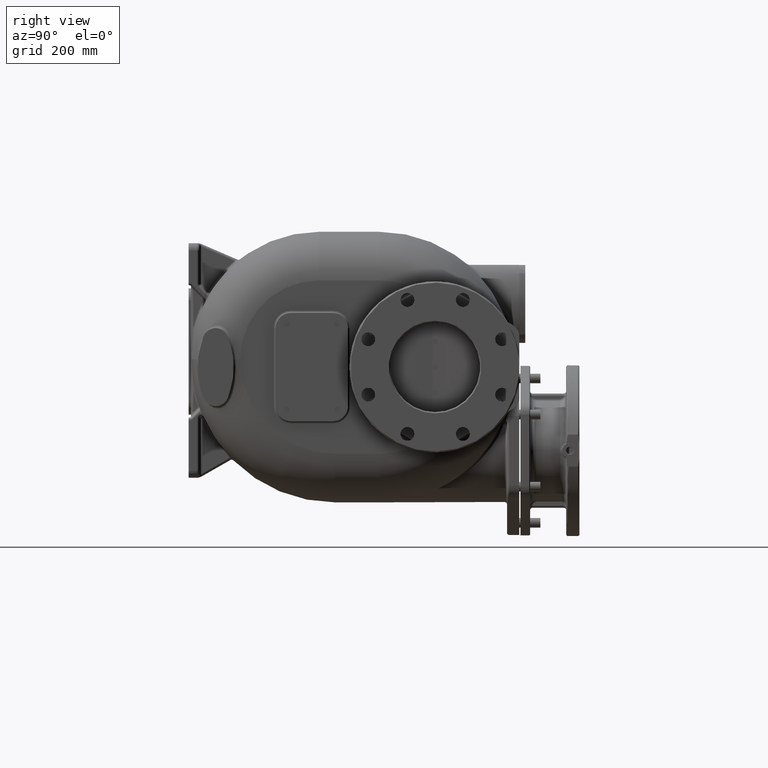
[diagram: clean part render]
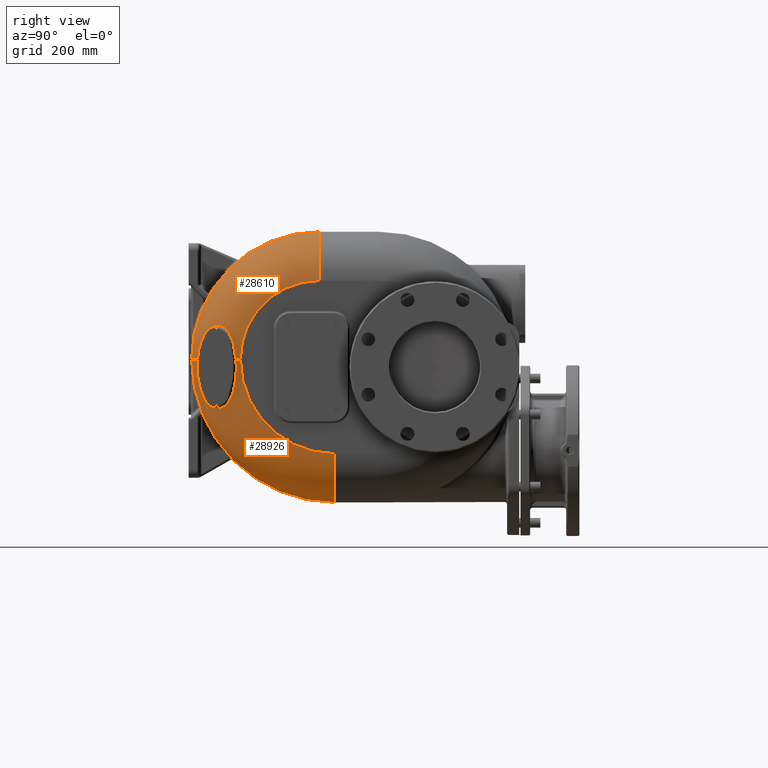
[diagram: same view with one multi-face feature highlighted, each face labeled with its STEP entity id]
A machine part, right view. The highlighted faces form ONE feature: a constant-radius fillet chain: 2 tangent blend faces with common blend radius 81 mm. The faces share edges in the B-rep.
Their STEP definitions:
[1] entity #28610 (Torus):
#2452=CARTESIAN_POINT('',(1.75E2,2.17E2,-1.3E1));
#2453=DIRECTION('',(1.E0,0.E0,0.E0));
#2454=DIRECTION('',(0.E0,0.E0,1.E0));
#2455=AXIS2_PLACEMENT_3D('',#2452,#2453,#2454);
#3329=CARTESIAN_POINT('',(1.746829829849E2,7.884065249736E1,-1.299999999999E1));
#3330=CARTESIAN_POINT('',(1.746792044707E2,7.879806956061E1,-1.244553714829E1));
#3331=CARTESIAN_POINT('',(1.746705265707E2,7.870769678981E1,-1.134183423742E1));
#3332=CARTESIAN_POINT('',(1.746539980732E2,7.855644554239E1,-9.699757664950E0));
#3333=CARTESIAN_POINT('',(1.746338156008E2,7.838987062858E1,-8.073686977598E0));
#3334=CARTESIAN_POINT('',(1.746098034248E2,7.820826024393E1,-6.464871554986E0));
#3335=CARTESIAN_POINT('',(1.745817665249E2,7.801193222903E1,-4.874892532193E0));
#3336=CARTESIAN_POINT('',(1.745495026881E2,7.780129409235E1,-3.305221677656E0));
#3337=CARTESIAN_POINT('',(1.745127966902E2,7.757672612600E1,-1.757354840660E0));
#3338=CARTESIAN_POINT('',(1.744714366868E2,7.733868265683E1,
-2.327840045208E-1));
#3339=CARTESIAN_POINT('',(1.744252171906E2,7.708766265939E1,1.267102820674E0));
#3340=CARTESIAN_POINT('',(1.743739243866E2,7.682407887206E1,2.741278317563E0));
#3341=CARTESIAN_POINT('',(1.743173675814E2,7.654845477321E1,4.188675821983E0));
#3342=CARTESIAN_POINT('',(1.742553626895E2,7.626126693898E1,5.608395762124E0));
#3343=CARTESIAN_POINT('',(1.741877398661E2,7.596298881410E1,6.999655913846E0));
#3344=CARTESIAN_POINT('',(1.741143627067E2,7.565418207784E1,8.361678124405E0));
#3345=CARTESIAN_POINT('',(1.740350946851E2,7.533528675545E1,9.693975672295E0));
#3346=CARTESIAN_POINT('',(1.739498308758E2,7.500680699593E1,1.099609739216E1));
#3347=CARTESIAN_POINT('',(1.738584917382E2,7.466925276322E1,1.226767437093E1));
#3348=CARTESIAN_POINT('',(1.737610035583E2,7.432304365442E1,1.350851520461E1));
#3349=CARTESIAN_POINT('',(1.736573333258E2,7.396868929554E1,1.471843317636E1));
#3350=CARTESIAN_POINT('',(1.735474568272E2,7.360662232571E1,1.589738334766E1));
#3351=CARTESIAN_POINT('',(1.734313621872E2,7.323723652061E1,1.704543289633E1));
#3352=CARTESIAN_POINT('',(1.733090748611E2,7.286099452472E1,1.816265632786E1));
#3353=CARTESIAN_POINT('',(1.731805843151E2,7.247815799064E1,1.924953530315E1));
#3354=CARTESIAN_POINT('',(1.730458859410E2,7.208897382508E1,2.030663207400E1));
#3355=CARTESIAN_POINT('',(1.729049902444E2,7.169370194106E1,2.133450229444E1));
#3356=CARTESIAN_POINT('',(1.727579287663E2,7.129260673208E1,2.233355721686E1));
#3357=CARTESIAN_POINT('',(1.726047416117E2,7.088595527585E1,2.330429596845E1));
#3358=CARTESIAN_POINT('',(1.724454891947E2,7.047402624871E1,2.424712006149E1));
#3359=CARTESIAN_POINT('',(1.722802523382E2,7.005709820622E1,2.516231376310E1));
#3360=CARTESIAN_POINT('',(1.721091271209E2,6.963547384452E1,2.605023196009E1));
#3361=CARTESIAN_POINT('',(1.719321956842E2,6.920937749631E1,2.691130291511E1));
#3362=CARTESIAN_POINT('',(1.717495296289E2,6.877898041427E1,2.774600626023E1));
#3363=CARTESIAN_POINT('',(1.715612059047E2,6.834446434950E1,2.855485980441E1));
#3364=CARTESIAN_POINT('',(1.713672999634E2,6.790597423986E1,2.933832526555E1));
#3365=CARTESIAN_POINT('',(1.711678809135E2,6.746363050161E1,3.009689199644E1));
#3366=CARTESIAN_POINT('',(1.709630157399E2,6.701754925964E1,3.083107712075E1));
#3367=CARTESIAN_POINT('',(1.707527595090E2,6.656779713466E1,3.154136302940E1));
#3368=CARTESIAN_POINT('',(1.705371531770E2,6.611441280380E1,3.222826967108E1));
#3369=CARTESIAN_POINT('',(1.703162347739E2,6.565743196281E1,3.289230513240E1));
#3370=CARTESIAN_POINT('',(1.700900311895E2,6.519685430015E1,3.353393277120E1));
#3371=CARTESIAN_POINT('',(1.698585497718E2,6.473264772798E1,3.415364822003E1));
#3372=CARTESIAN_POINT('',(1.696217907795E2,6.426477189168E1,3.475192461521E1));
#3373=CARTESIAN_POINT('',(1.693797316946E2,6.379313686223E1,3.532921277068E1));
#3374=CARTESIAN_POINT('',(1.691323275721E2,6.331762193331E1,3.588597510124E1));
#3375=CARTESIAN_POINT('',(1.688795595075E2,6.283816511085E1,3.642256581178E1));
#3376=CARTESIAN_POINT('',(1.686213922855E2,6.235467015010E1,3.693930659569E1));
#3377=CARTESIAN_POINT('',(1.683577407041E2,6.186696124701E1,3.743658527980E1));
#3378=CARTESIAN_POINT('',(1.680884414929E2,6.137473120906E1,3.791487104957E1));
#3379=CARTESIAN_POINT('',(1.678132017963E2,6.087744850791E1,3.837471269326E1));
#3380=CARTESIAN_POINT('',(1.675321945618E2,6.037544641962E1,3.881583869027E1));
#3381=CARTESIAN_POINT('',(1.672459947355E2,5.986974695742E1,3.923747269391E1));
#3382=CARTESIAN_POINT('',(1.669551479588E2,5.936126740473E1,3.963905052886E1));
#3383=CARTESIAN_POINT('',(1.666601170991E2,5.885076549029E1,4.002032380338E1));
#3384=CARTESIAN_POINT('',(1.663614002514E2,5.833902292176E1,4.038108776787E1));
#3385=CARTESIAN_POINT('',(1.660593720981E2,5.782658040855E1,4.072139032272E1));
#3386=CARTESIAN_POINT('',(1.657537844266E2,5.731294017186E1,4.104202588443E1));
#3387=CARTESIAN_POINT('',(1.654443759204E2,5.679758926457E1,4.134360714781E1));
#3388=CARTESIAN_POINT('',(1.651309861998E2,5.628021011734E1,4.162656769299E1));
#3389=CARTESIAN_POINT('',(1.648136102591E2,5.576076291256E1,4.189117326028E1));
#3390=CARTESIAN_POINT('',(1.644921850345E2,5.523909566732E1,4.213763819879E1));
#3391=CARTESIAN_POINT('',(1.641666337636E2,5.471506110908E1,4.236619668327E1));
#3392=CARTESIAN_POINT('',(1.638368572977E2,5.418848140098E1,4.257704636E1));
#3393=CARTESIAN_POINT('',(1.635027412343E2,5.365914533418E1,4.277029309083E1));
#3394=CARTESIAN_POINT('',(1.631642434889E2,5.312698789890E1,4.294603204900E1));
#3395=CARTESIAN_POINT('',(1.628213191196E2,5.259192735310E1,4.310428463705E1));
#3396=CARTESIAN_POINT('',(1.624739071713E2,5.205385610728E1,4.324503448823E1));
#3397=CARTESIAN_POINT('',(1.621219140664E2,5.151264027936E1,4.336830161882E1));
#3398=CARTESIAN_POINT('',(1.617652269064E2,5.096809939680E1,4.347400464703E1));
#3399=CARTESIAN_POINT('',(1.614038455106E2,5.042023901915E1,4.356202294576E1));
#3400=CARTESIAN_POINT('',(1.610378902978E2,4.986925258604E1,4.363221984911E1));
#3401=CARTESIAN_POINT('',(1.606674775312E2,4.931530104518E1,4.368440275502E1));
#3402=CARTESIAN_POINT('',(1.602927234528E2,4.875855899149E1,4.371843370374E1));
#3403=CARTESIAN_POINT('',(1.600401176294E2,4.838571796670E1,4.372891983878E1));
#3404=CARTESIAN_POINT('',(1.599131193948E2,4.819886811485E1,4.373108258469E1));
#3406=CARTESIAN_POINT('',(1.599131193948E2,4.819886811485E1,4.373108258469E1));
#3407=CARTESIAN_POINT('',(1.597837170996E2,4.800848269575E1,4.373328602502E1));
#3408=CARTESIAN_POINT('',(1.595233511070E2,4.762668044502E1,4.373140112179E1));
#3409=CARTESIAN_POINT('',(1.591281122762E2,4.705088534469E1,4.370945965032E1));
#3410=CARTESIAN_POINT('',(1.587283050793E2,4.647215729344E1,4.366812490201E1));
#3411=CARTESIAN_POINT('',(1.583240321315E2,4.589062862121E1,4.360711615494E1));
#3412=CARTESIAN_POINT('',(1.579153964054E2,4.530643492682E1,4.352616600458E1));
#3413=CARTESIAN_POINT('',(1.575025377004E2,4.471974257819E1,4.342495290027E1));
#3414=CARTESIAN_POINT('',(1.570855739380E2,4.413069496100E1,4.330318254168E1));
#3415=CARTESIAN_POINT('',(1.566646272013E2,4.353943355180E1,4.316053802502E1));
#3416=CARTESIAN_POINT('',(1.562398542652E2,4.294613493709E1,4.299667706911E1));
#3417=CARTESIAN_POINT('',(1.558113531328E2,4.235090321656E1,4.281126534453E1));
#3418=CARTESIAN_POINT('',(1.553792576938E2,4.175387644003E1,4.260392506802E1));
#3419=CARTESIAN_POINT('',(1.549437076773E2,4.115519811587E1,4.237427091184E1));
#3420=CARTESIAN_POINT('',(1.545048065442E2,4.055496744026E1,4.212190553704E1));
#3421=CARTESIAN_POINT('',(1.540627151575E2,3.995334601246E1,4.184640122315E1));
#3422=CARTESIAN_POINT('',(1.536175478291E2,3.935043810977E1,4.154731188310E1));
#3423=CARTESIAN_POINT('',(1.531694067797E2,3.874633078482E1,4.122415583112E1));
#3424=CARTESIAN_POINT('',(1.527184475588E2,3.814117160195E1,4.087643167830E1));
#3425=CARTESIAN_POINT('',(1.522647486492E2,3.753501604646E1,4.050359138797E1));
#3426=CARTESIAN_POINT('',(1.518084283301E2,3.692796824646E1,4.010506481121E1));
#3427=CARTESIAN_POINT('',(1.513496166203E2,3.632014404002E1,3.968024760013E1));
#3428=CARTESIAN_POINT('',(1.508883710899E2,3.571157536535E1,3.922846373576E1));
#3429=CARTESIAN_POINT('',(1.504248220674E2,3.510238646464E1,3.874904123229E1));
#3430=CARTESIAN_POINT('',(1.499590580078E2,3.449264892677E1,3.824122417929E1));
#3431=CARTESIAN_POINT('',(1.494911412633E2,3.388241297546E1,3.770420256213E1));
#3432=CARTESIAN_POINT('',(1.490212042292E2,3.327182042241E1,3.713717785446E1));
#3433=CARTESIAN_POINT('',(1.485493036616E2,3.266092060651E1,3.653920718424E1));
#3434=CARTESIAN_POINT('',(1.480755276740E2,3.204982130692E1,3.590935610721E1));
#3435=CARTESIAN_POINT('',(1.475999965984E2,3.143867407269E1,3.524665138775E1));
#3436=CARTESIAN_POINT('',(1.471227668542E2,3.082755889257E1,3.454996339584E1));
#3437=CARTESIAN_POINT('',(1.466439576921E2,3.021666364747E1,3.381823702834E1));
#3438=CARTESIAN_POINT('',(1.461636763300E2,2.960615943068E1,3.305027296729E1));
#3439=CARTESIAN_POINT('',(1.456820125657E2,2.899621995452E1,3.224479554426E1));
#3440=CARTESIAN_POINT('',(1.451991091460E2,2.838712020579E1,3.140060471589E1));
#3441=CARTESIAN_POINT('',(1.447150876028E2,2.777910091009E1,3.051626813873E1));
#3442=CARTESIAN_POINT('',(1.442300895049E2,2.717248276108E1,2.959043347079E1));
#3443=CARTESIAN_POINT('',(1.437442737535E2,2.656762996023E1,2.862168332938E1));
#3444=CARTESIAN_POINT('',(1.432577827151E2,2.596489670781E1,2.760838843727E1));
#3445=CARTESIAN_POINT('',(1.427707661609E2,2.536472925261E1,2.654906152911E1));
#3446=CARTESIAN_POINT('',(1.422834806852E2,2.476769595105E1,2.544214528891E1));
#3447=CARTESIAN_POINT('',(1.417961899347E2,2.417443813252E1,2.428614927735E1));
#3448=CARTESIAN_POINT('',(1.413091517248E2,2.358566726630E1,2.307968137192E1));
#3449=CARTESIAN_POINT('',(1.408227468673E2,2.300221520214E1,2.182120993267E1));
#3450=CARTESIAN_POINT('',(1.403372889723E2,2.242495840037E1,2.050940147683E1));
#3451=CARTESIAN_POINT('',(1.398531196365E2,2.185483320171E1,1.914280870690E1));
#3452=CARTESIAN_POINT('',(1.393706024780E2,2.129284079069E1,1.771988730485E1));
#3453=CARTESIAN_POINT('',(1.388900179869E2,2.074002559565E1,1.623927532923E1));
#3454=CARTESIAN_POINT('',(1.384118644196E2,2.019766687025E1,1.469973804761E1));
#3455=CARTESIAN_POINT('',(1.379365480712E2,1.966706271912E1,1.310016541215E1));
#3456=CARTESIAN_POINT('',(1.374645003529E2,1.914962668174E1,1.143969446494E1));
#3457=CARTESIAN_POINT('',(1.369963978263E2,1.864703194106E1,9.717864821511E0));
#3458=CARTESIAN_POINT('',(1.365326787705E2,1.816085147903E1,7.934295919351E0));
#3459=CARTESIAN_POINT('',(1.360740179738E2,1.769289986537E1,6.089090868848E0));
#3460=CARTESIAN_POINT('',(1.356211153244E2,1.724505220818E1,4.182658384068E0));
#3461=CARTESIAN_POINT('',(1.351744779454E2,1.681910009717E1,2.215559436378E0));
#3462=CARTESIAN_POINT('',(1.347352575325E2,1.641735592529E1,1.903477044404E-1));
#3463=CARTESIAN_POINT('',(1.343043200259E2,1.604187561523E1,-1.890348004364E0));
#3464=CARTESIAN_POINT('',(1.338825773627E2,1.569468663020E1,-4.023311504254E0));
#3465=CARTESIAN_POINT('',(1.334712230803E2,1.537788619058E1,-6.204466846682E0));
#3466=CARTESIAN_POINT('',(1.330711012472E2,1.509321195766E1,-8.429555363647E0));
#3467=CARTESIAN_POINT('',(1.326831531908E2,1.484229823454E1,-1.069473223705E1));
#3468=CARTESIAN_POINT('',(1.324334637403E2,1.469860986193E1,-1.222763649690E1));
#3469=CARTESIAN_POINT('',(1.323108332678E2,1.463278025361E1,-1.3E1));
#3471=CARTESIAN_POINT('',(9.4E1,2.17E2,1.18E2));
#3472=DIRECTION('',(0.E0,-1.E0,0.E0));
#3473=DIRECTION('',(1.E0,0.E0,0.E0));
#3474=AXIS2_PLACEMENT_3D('',#3471,#3472,#3473);
#3486=CARTESIAN_POINT('',(1.323108332678E2,1.463278025361E1,-1.3E1));
#3654=CARTESIAN_POINT('',(1.746829829849E2,7.884065249736E1,-1.299999999999E1));
#3656=CARTESIAN_POINT('',(9.4E1,8.6E1,-1.3E1));
#3657=DIRECTION('',(0.E0,0.E0,-1.E0));
#3658=DIRECTION('',(1.E0,0.E0,0.E0));
#3659=AXIS2_PLACEMENT_3D('',#3656,#3657,#3658);
#3661=CARTESIAN_POINT('',(9.4E1,8.6E1,-1.3E1));
#3662=DIRECTION('',(0.E0,0.E0,-1.E0));
#3663=DIRECTION('',(4.729732502194E-1,-8.810767869925E-1,0.E0));
#3664=AXIS2_PLACEMENT_3D('',#3661,#3662,#3663);
#6973=CARTESIAN_POINT('',(9.4E1,2.17E2,-1.3E1));
#6974=DIRECTION('',(1.E0,0.E0,0.E0));
#6975=DIRECTION('',(0.E0,0.E0,1.E0));
#6976=AXIS2_PLACEMENT_3D('',#6973,#6974,#6975);
#21676=CARTESIAN_POINT('',(9.4E1,2.170000000004E2,1.99E2));
#21678=VERTEX_POINT('',#21676);
#21733=CARTESIAN_POINT('',(1.75E2,8.6E1,-1.3E1));
#21734=VERTEX_POINT('',#21733);
#21735=CARTESIAN_POINT('',(9.4E1,5.E0,-1.3E1));
#21736=VERTEX_POINT('',#21735);
#21737=CARTESIAN_POINT('',(1.75E2,2.17E2,1.18E2));
#21738=VERTEX_POINT('',#21737);
#21741=VERTEX_POINT('',#3486);
#21744=VERTEX_POINT('',#3654);
#21746=VERTEX_POINT('',#3404);
#28591=CARTESIAN_POINT('',(9.4E1,2.17E2,-1.3E1));
#28592=DIRECTION('',(-1.E0,0.E0,0.E0));
#28593=DIRECTION('',(0.E0,7.943428798761E-3,9.999684504718E-1));
#28594=AXIS2_PLACEMENT_3D('',#28591,#28592,#28593);
#28595=TOROIDAL_SURFACE('',#28594,1.31E2,8.1E1);
#28597=ORIENTED_EDGE('',*,*,#28596,.T.);
#28599=ORIENTED_EDGE('',*,*,#28598,.T.);
#28601=ORIENTED_EDGE('',*,*,#28600,.T.);
#28603=ORIENTED_EDGE('',*,*,#28602,.F.);
#28604=ORIENTED_EDGE('',*,*,#28583,.F.);
#28605=ORIENTED_EDGE('',*,*,#27791,.T.);
#28607=ORIENTED_EDGE('',*,*,#28606,.T.);
#28608=EDGE_LOOP('',(#28597,#28599,#28601,#28603,#28604,#28605,#28607));
#28609=FACE_OUTER_BOUND('',#28608,.F.);
#28610=ADVANCED_FACE('',(#28609),#28595,.T.);
#2456=CIRCLE('',#2455,1.31E2);
#3405=B_SPLINE_CURVE_WITH_KNOTS('',3,(#3329,#3330,#3331,#3332,#3333,#3334,#3335,
#3336,#3337,#3338,#3339,#3340,#3341,#3342,#3343,#3344,#3345,#3346,#3347,#3348,
#3349,#3350,#3351,#3352,#3353,#3354,#3355,#3356,#3357,#3358,#3359,#3360,#3361,
#3362,#3363,#3364,#3365,#3366,#3367,#3368,#3369,#3370,#3371,#3372,#3373,#3374,
#3375,#3376,#3377,#3378,#3379,#3380,#3381,#3382,#3383,#3384,#3385,#3386,#3387,
#3388,#3389,#3390,#3391,#3392,#3393,#3394,#3395,#3396,#3397,#3398,#3399,#3400,
#3401,#3402,#3403,#3404),.UNSPECIFIED.,.F.,.F.,(4,1,1,1,1,1,1,1,1,1,1,1,1,1,1,1,
1,1,1,1,1,1,1,1,1,1,1,1,1,1,1,1,1,1,1,1,1,1,1,1,1,1,1,1,1,1,1,1,1,1,1,1,1,1,1,1,
1,1,1,1,1,1,1,1,1,1,1,1,1,1,1,1,1,4),(0.E0,1.369863013699E-2,2.739726027397E-2,
4.109589041096E-2,5.479452054795E-2,6.849315068493E-2,8.219178082192E-2,
9.589041095890E-2,1.095890410959E-1,1.232876712329E-1,1.369863013699E-1,
1.506849315068E-1,1.643835616438E-1,1.780821917808E-1,1.917808219178E-1,
2.054794520548E-1,2.191780821918E-1,2.328767123288E-1,2.465753424658E-1,
2.602739726027E-1,2.739726027397E-1,2.876712328767E-1,3.013698630137E-1,
3.150684931507E-1,3.287671232877E-1,3.424657534247E-1,3.561643835616E-1,
3.698630136986E-1,3.835616438356E-1,3.972602739726E-1,4.109589041096E-1,
4.246575342466E-1,4.383561643836E-1,4.520547945205E-1,4.657534246575E-1,
4.794520547945E-1,4.931506849315E-1,5.068493150685E-1,5.205479452055E-1,
5.342465753425E-1,5.479452054795E-1,5.616438356164E-1,5.753424657534E-1,
5.890410958904E-1,6.027397260274E-1,6.164383561644E-1,6.301369863014E-1,
6.438356164384E-1,6.575342465753E-1,6.712328767123E-1,6.849315068493E-1,
6.986301369863E-1,7.123287671233E-1,7.260273972603E-1,7.397260273973E-1,
7.534246575342E-1,7.671232876712E-1,7.808219178082E-1,7.945205479452E-1,
8.082191780822E-1,8.219178082192E-1,8.356164383562E-1,8.493150684932E-1,
8.630136986301E-1,8.767123287671E-1,8.904109589041E-1,9.041095890411E-1,
9.178082191781E-1,9.315068493151E-1,9.452054794521E-1,9.589041095890E-1,
9.726027397260E-1,9.863013698630E-1,1.E0),.UNSPECIFIED.);
#3470=B_SPLINE_CURVE_WITH_KNOTS('',3,(#3406,#3407,#3408,#3409,#3410,#3411,#3412,
#3413,#3414,#3415,#3416,#3417,#3418,#3419,#3420,#3421,#3422,#3423,#3424,#3425,
#3426,#3427,#3428,#3429,#3430,#3431,#3432,#3433,#3434,#3435,#3436,#3437,#3438,
#3439,#3440,#3441,#3442,#3443,#3444,#3445,#3446,#3447,#3448,#3449,#3450,#3451,
#3452,#3453,#3454,#3455,#3456,#3457,#3458,#3459,#3460,#3461,#3462,#3463,#3464,
#3465,#3466,#3467,#3468,#3469),.UNSPECIFIED.,.F.,.F.,(4,1,1,1,1,1,1,1,1,1,1,1,1,
1,1,1,1,1,1,1,1,1,1,1,1,1,1,1,1,1,1,1,1,1,1,1,1,1,1,1,1,1,1,1,1,1,1,1,1,1,1,1,1,
1,1,1,1,1,1,1,1,4),(0.E0,1.639344262295E-2,3.278688524590E-2,4.918032786885E-2,
6.557377049180E-2,8.196721311475E-2,9.836065573770E-2,1.147540983607E-1,
1.311475409836E-1,1.475409836066E-1,1.639344262295E-1,1.803278688525E-1,
1.967213114754E-1,2.131147540984E-1,2.295081967213E-1,2.459016393443E-1,
2.622950819672E-1,2.786885245902E-1,2.950819672131E-1,3.114754098361E-1,
3.278688524590E-1,3.442622950820E-1,3.606557377049E-1,3.770491803279E-1,
3.934426229508E-1,4.098360655738E-1,4.262295081967E-1,4.426229508197E-1,
4.590163934426E-1,4.754098360656E-1,4.918032786885E-1,5.081967213115E-1,
5.245901639344E-1,5.409836065574E-1,5.573770491803E-1,5.737704918033E-1,
5.901639344262E-1,6.065573770492E-1,6.229508196721E-1,6.393442622951E-1,
6.557377049180E-1,6.721311475410E-1,6.885245901639E-1,7.049180327869E-1,
7.213114754098E-1,7.377049180328E-1,7.540983606557E-1,7.704918032787E-1,
7.868852459016E-1,8.032786885246E-1,8.196721311475E-1,8.360655737705E-1,
8.524590163934E-1,8.688524590164E-1,8.852459016393E-1,9.016393442623E-1,
9.180327868852E-1,9.344262295082E-1,9.508196721311E-1,9.672131147541E-1,
9.836065573770E-1,1.E0),.UNSPECIFIED.);
#3475=CIRCLE('',#3474,8.1E1);
#3660=CIRCLE('',#3659,8.1E1);
#3665=CIRCLE('',#3664,8.1E1);
#6977=CIRCLE('',#6976,2.12E2);
#27791=EDGE_CURVE('',#21738,#21734,#2456,.T.);
#28583=EDGE_CURVE('',#21738,#21678,#3475,.T.);
#28596=EDGE_CURVE('',#21744,#21746,#3405,.T.);
#28598=EDGE_CURVE('',#21746,#21741,#3470,.T.);
#28600=EDGE_CURVE('',#21741,#21736,#3665,.T.);
#28602=EDGE_CURVE('',#21678,#21736,#6977,.T.);
#28606=EDGE_CURVE('',#21734,#21744,#3660,.T.);
[2] entity #28926 (Torus):
#2447=CARTESIAN_POINT('',(1.75E2,2.43E2,-1.3E1));
#2448=DIRECTION('',(1.E0,0.E0,0.E0));
#2449=DIRECTION('',(0.E0,-1.E0,0.E0));
#2450=AXIS2_PLACEMENT_3D('',#2447,#2448,#2449);
#3486=CARTESIAN_POINT('',(1.323108332678E2,1.463278025361E1,-1.3E1));
#3487=CARTESIAN_POINT('',(1.321929159865E2,1.456947936981E1,-1.374555449030E1));
#3488=CARTESIAN_POINT('',(1.319638233510E2,1.445455072807E1,-1.524084312153E1));
#3489=CARTESIAN_POINT('',(1.316405377955E2,1.431721406541E1,-1.749793679789E1));
#3490=CARTESIAN_POINT('',(1.313388376110E2,1.421540285107E1,-1.976220701034E1));
#3491=CARTESIAN_POINT('',(1.310594774055E2,1.414914611051E1,-2.202897011508E1));
#3492=CARTESIAN_POINT('',(1.308034259133E2,1.411841430698E1,-2.429302126710E1));
#3493=CARTESIAN_POINT('',(1.305714059698E2,1.412288453073E1,-2.654936909042E1));
#3494=CARTESIAN_POINT('',(1.303641189346E2,1.416203132697E1,-2.879253267763E1));
#3495=CARTESIAN_POINT('',(1.301821588615E2,1.423507465947E1,-3.101674278618E1));
#3496=CARTESIAN_POINT('',(1.300258495110E2,1.434092456779E1,-3.321630553775E1));
#3497=CARTESIAN_POINT('',(1.298956415263E2,1.447841280720E1,-3.538582157033E1));
#3498=CARTESIAN_POINT('',(1.297916810723E2,1.464606482799E1,-3.751987319681E1));
#3499=CARTESIAN_POINT('',(1.297138265640E2,1.484216925607E1,-3.961354069893E1));
#3500=CARTESIAN_POINT('',(1.296619765889E2,1.506519338546E1,-4.166411083156E1));
#3501=CARTESIAN_POINT('',(1.296357107990E2,1.531336935544E1,-4.366854482837E1));
#3502=CARTESIAN_POINT('',(1.296345710273E2,1.558501175040E1,-4.562486243165E1));
#3503=CARTESIAN_POINT('',(1.296580666419E2,1.587854971024E1,-4.753196597303E1));
#3504=CARTESIAN_POINT('',(1.297054573793E2,1.619228994133E1,-4.938863645890E1));
#3505=CARTESIAN_POINT('',(1.297761310083E2,1.652480432405E1,-5.119476029080E1));
#3506=CARTESIAN_POINT('',(1.298693537382E2,1.687468746011E1,-5.295039370158E1));
#3507=CARTESIAN_POINT('',(1.299843304193E2,1.724059390064E1,-5.465581021174E1));
#3508=CARTESIAN_POINT('',(1.301203787487E2,1.762139047255E1,-5.631180013578E1));
#3509=CARTESIAN_POINT('',(1.302766966480E2,1.801595976922E1,-5.791919304816E1));
#3510=CARTESIAN_POINT('',(1.304525560798E2,1.842332008604E1,-5.947898473001E1));
#3511=CARTESIAN_POINT('',(1.306472512651E2,1.884259451904E1,-6.099229934181E1));
#3512=CARTESIAN_POINT('',(1.308600437599E2,1.927297211061E1,-6.246034021823E1));
#3513=CARTESIAN_POINT('',(1.310902707221E2,1.971372939236E1,-6.388424488894E1));
#3514=CARTESIAN_POINT('',(1.313372636215E2,2.016422670904E1,-6.526527235066E1));
#3515=CARTESIAN_POINT('',(1.316003771177E2,2.062387951190E1,-6.660461685288E1));
#3516=CARTESIAN_POINT('',(1.318789948743E2,2.109214708328E1,-6.790337406105E1));
#3517=CARTESIAN_POINT('',(1.321725244732E2,2.156858203436E1,-6.916276597328E1));
#3518=CARTESIAN_POINT('',(1.324803776733E2,2.205272903275E1,-7.038378803355E1));
#3519=CARTESIAN_POINT('',(1.328019992718E2,2.254420348146E1,-7.156748310063E1));
#3520=CARTESIAN_POINT('',(1.331368547447E2,2.304266699685E1,-7.271487294511E1));
#3521=CARTESIAN_POINT('',(1.334843961739E2,2.354775701753E1,-7.382678815048E1));
#3522=CARTESIAN_POINT('',(1.338441350259E2,2.405920807460E1,-7.490417352150E1));
#3523=CARTESIAN_POINT('',(1.342155565869E2,2.457672296699E1,-7.594780450483E1));
#3524=CARTESIAN_POINT('',(1.345981686769E2,2.510003405992E1,-7.695842569171E1));
#3525=CARTESIAN_POINT('',(1.349915192180E2,2.562893215547E1,-7.793681314708E1));
#3526=CARTESIAN_POINT('',(1.353951091935E2,2.616315119328E1,-7.888357244240E1));
#3527=CARTESIAN_POINT('',(1.358085079080E2,2.670250573226E1,-7.979937482440E1));
#3528=CARTESIAN_POINT('',(1.362312618623E2,2.724679058739E1,-8.068481012046E1));
#3529=CARTESIAN_POINT('',(1.366629148651E2,2.779579373420E1,-8.154040366904E1));
#3530=CARTESIAN_POINT('',(1.371030703166E2,2.834936953940E1,-8.236672217447E1));
#3531=CARTESIAN_POINT('',(1.375512711636E2,2.890731136185E1,-8.316422303742E1));
#3532=CARTESIAN_POINT('',(1.380071182059E2,2.946946616968E1,-8.393337852558E1));
#3533=CARTESIAN_POINT('',(1.384702104602E2,3.003568397904E1,-8.467463859723E1));
#3534=CARTESIAN_POINT('',(1.389401160171E2,3.060578050749E1,-8.538838898758E1));
#3535=CARTESIAN_POINT('',(1.394164729358E2,3.117963545908E1,-8.607503727699E1));
#3536=CARTESIAN_POINT('',(1.398988645163E2,3.175708003004E1,-8.673493992039E1));
#3537=CARTESIAN_POINT('',(1.403869006968E2,3.233796203254E1,-8.736843292871E1));
#3538=CARTESIAN_POINT('',(1.408802221836E2,3.292215751081E1,-8.797585213930E1));
#3539=CARTESIAN_POINT('',(1.413784109194E2,3.350948687114E1,-8.855748941958E1));
#3540=CARTESIAN_POINT('',(1.418811095929E2,3.409981679914E1,-8.911363189090E1));
#3541=CARTESIAN_POINT('',(1.423879383908E2,3.469299394010E1,-8.964455076792E1));
#3542=CARTESIAN_POINT('',(1.428984913039E2,3.528883420617E1,-9.015048998223E1));
#3543=CARTESIAN_POINT('',(1.434124191458E2,3.588719641385E1,-9.063168742857E1));
#3544=CARTESIAN_POINT('',(1.439293170632E2,3.648788712883E1,-9.108836342053E1));
#3545=CARTESIAN_POINT('',(1.444487901576E2,3.709071163010E1,-9.152072324662E1));
#3546=CARTESIAN_POINT('',(1.449704750155E2,3.769549554336E1,-9.192896344836E1));
#3547=CARTESIAN_POINT('',(1.454939456896E2,3.830200168700E1,-9.231326869725E1));
#3548=CARTESIAN_POINT('',(1.460188110616E2,3.891001313679E1,-9.267381641223E1));
#3549=CARTESIAN_POINT('',(1.465446803131E2,3.951930424899E1,-9.301077692639E1));
#3550=CARTESIAN_POINT('',(1.470711247058E2,4.012960732484E1,-9.332432350819E1));
#3551=CARTESIAN_POINT('',(1.475977579939E2,4.074068180711E1,-9.361462412449E1));
#3552=CARTESIAN_POINT('',(1.481241656165E2,4.135224879858E1,-9.388184153948E1));
#3553=CARTESIAN_POINT('',(1.486499190286E2,4.196400698444E1,-9.412614830144E1));
#3554=CARTESIAN_POINT('',(1.491746235057E2,4.257567251161E1,-9.434771132124E1));
#3555=CARTESIAN_POINT('',(1.496978756090E2,4.318694818094E1,-9.454671811071E1));
#3556=CARTESIAN_POINT('',(1.502192922606E2,4.379754763319E1,-9.472336679492E1));
#3557=CARTESIAN_POINT('',(1.507385054394E2,4.440718144728E1,-9.487784233726E1));
#3558=CARTESIAN_POINT('',(1.512550967418E2,4.501549855094E1,-9.501034644267E1));
#3559=CARTESIAN_POINT('',(1.517686710283E2,4.562215571993E1,-9.512108529684E1));
#3560=CARTESIAN_POINT('',(1.522788843594E2,4.622685477822E1,-9.521028024643E1));
#3561=CARTESIAN_POINT('',(1.527854503185E2,4.682936281408E1,-9.527818802354E1));
#3562=CARTESIAN_POINT('',(1.532881003993E2,4.742944416094E1,-9.532503650922E1));
#3563=CARTESIAN_POINT('',(1.537865824981E2,4.802687725904E1,-9.535106683456E1));
#3564=CARTESIAN_POINT('',(1.541159068464E2,4.842318745853E1,-9.535470739627E1));
#3565=CARTESIAN_POINT('',(1.542798226339E2,4.862085925553E1,-9.535313771391E1));
#3567=CARTESIAN_POINT('',(1.542798226339E2,4.862085925553E1,-9.535313771391E1));
#3568=CARTESIAN_POINT('',(1.544423996887E2,4.881691741832E1,-9.535158046549E1));
#3569=CARTESIAN_POINT('',(1.547660308980E2,4.920798821862E1,-9.534172661827E1));
#3570=CARTESIAN_POINT('',(1.552469256741E2,4.979153858810E1,-9.530694732464E1));
#3571=CARTESIAN_POINT('',(1.557229646401E2,5.037170033012E1,-9.525237073883E1));
#3572=CARTESIAN_POINT('',(1.561939544066E2,5.094826299052E1,-9.517819314944E1));
#3573=CARTESIAN_POINT('',(1.566597004572E2,5.152102249796E1,-9.508464989140E1));
#3574=CARTESIAN_POINT('',(1.571200135625E2,5.208975288240E1,-9.497193550964E1));
#3575=CARTESIAN_POINT('',(1.575748336676E2,5.265439112657E1,-9.484023676056E1));
#3576=CARTESIAN_POINT('',(1.580241895115E2,5.321498671247E1,-9.468970706505E1));
#3577=CARTESIAN_POINT('',(1.584681018771E2,5.377155684404E1,-9.452042641100E1));
#3578=CARTESIAN_POINT('',(1.589065847698E2,5.432413239216E1,-9.433250757738E1));
#3579=CARTESIAN_POINT('',(1.593396506228E2,5.487272836058E1,-9.412601087209E1));
#3580=CARTESIAN_POINT('',(1.597673262482E2,5.541736840637E1,-9.390094647716E1));
#3581=CARTESIAN_POINT('',(1.601897007090E2,5.595818063820E1,-9.365731798904E1));
#3582=CARTESIAN_POINT('',(1.606068435463E2,5.649524462615E1,-9.339504330858E1));
#3583=CARTESIAN_POINT('',(1.610188425294E2,5.702867605303E1,-9.311401723105E1));
#3584=CARTESIAN_POINT('',(1.614258031685E2,5.755862786975E1,-9.281410447574E1));
#3585=CARTESIAN_POINT('',(1.618277977199E2,5.808518710029E1,-9.249509024887E1));
#3586=CARTESIAN_POINT('',(1.622249585266E2,5.860854908487E1,-9.215672515870E1));
#3587=CARTESIAN_POINT('',(1.626174111708E2,5.912889893847E1,-9.179868863430E1));
#3588=CARTESIAN_POINT('',(1.630052469816E2,5.964636731508E1,-9.142059959251E1));
#3589=CARTESIAN_POINT('',(1.633885668407E2,6.016113166212E1,-9.102207403849E1));
#3590=CARTESIAN_POINT('',(1.637674053966E2,6.067326573026E1,-9.060269218464E1));
#3591=CARTESIAN_POINT('',(1.641418927591E2,6.118298030003E1,-9.016187580460E1));
#3592=CARTESIAN_POINT('',(1.645123023906E2,6.169071057770E1,-8.969882063545E1));
#3593=CARTESIAN_POINT('',(1.648788790020E2,6.219684695184E1,-8.921255958476E1));
#3594=CARTESIAN_POINT('',(1.652413590373E2,6.270110272967E1,-8.870274918509E1));
#3595=CARTESIAN_POINT('',(1.655992920661E2,6.320292619056E1,-8.816936683965E1));
#3596=CARTESIAN_POINT('',(1.659522527307E2,6.370177302325E1,-8.761239062495E1));
#3597=CARTESIAN_POINT('',(1.662995351924E2,6.419670448315E1,-8.703240965125E1));
#3598=CARTESIAN_POINT('',(1.666404219958E2,6.468672674218E1,-8.643023728479E1));
#3599=CARTESIAN_POINT('',(1.669745766666E2,6.517136167087E1,-8.580619880309E1));
#3600=CARTESIAN_POINT('',(1.673021358542E2,6.565082661331E1,-8.515978863903E1));
#3601=CARTESIAN_POINT('',(1.676230990987E2,6.612513653549E1,-8.449067039079E1));
#3602=CARTESIAN_POINT('',(1.679375383302E2,6.659441634409E1,-8.379831156633E1));
#3603=CARTESIAN_POINT('',(1.682455083759E2,6.705878138114E1,-8.308215865974E1));
#3604=CARTESIAN_POINT('',(1.685470251422E2,6.751828447914E1,-8.234165568474E1));
#3605=CARTESIAN_POINT('',(1.688420876776E2,6.797295725393E1,-8.157622617370E1));
#3606=CARTESIAN_POINT('',(1.691306688300E2,6.842280165738E1,-8.078532277697E1));
#3607=CARTESIAN_POINT('',(1.694127200566E2,6.886777475055E1,-7.996837531236E1));
#3608=CARTESIAN_POINT('',(1.696881846654E2,6.930782205317E1,-7.912479599465E1));
#3609=CARTESIAN_POINT('',(1.699569862022E2,6.974286449017E1,-7.825403907476E1));
#3610=CARTESIAN_POINT('',(1.702190278252E2,7.017276547454E1,-7.735554245570E1));
#3611=CARTESIAN_POINT('',(1.704742056317E2,7.059737860701E1,-7.642877167029E1));
#3612=CARTESIAN_POINT('',(1.707224052516E2,7.101653524537E1,-7.547323004446E1));
#3613=CARTESIAN_POINT('',(1.709634945513E2,7.142999909520E1,-7.448842477709E1));
#3614=CARTESIAN_POINT('',(1.711973473386E2,7.183754741465E1,-7.347391052112E1));
#3615=CARTESIAN_POINT('',(1.714238293693E2,7.223891580083E1,-7.242927937736E1));
#3616=CARTESIAN_POINT('',(1.716427978446E2,7.263378097129E1,-7.135415807817E1));
#3617=CARTESIAN_POINT('',(1.718541296952E2,7.302185485215E1,-7.024822214443E1));
#3618=CARTESIAN_POINT('',(1.720576922831E2,7.340277427429E1,-6.911120060085E1));
#3619=CARTESIAN_POINT('',(1.722533629531E2,7.377615390168E1,-6.794287372012E1));
#3620=CARTESIAN_POINT('',(1.724410455457E2,7.414164359585E1,-6.674306832442E1));
#3621=CARTESIAN_POINT('',(1.726206357197E2,7.449879221529E1,-6.551169515921E1));
#3622=CARTESIAN_POINT('',(1.727920612088E2,7.484718099399E1,-6.424870852858E1));
#3623=CARTESIAN_POINT('',(1.729552720555E2,7.518639007246E1,-6.295412666103E1));
#3624=CARTESIAN_POINT('',(1.731102218938E2,7.551591173362E1,-6.162807533586E1));
#3625=CARTESIAN_POINT('',(1.732569109331E2,7.583531077657E1,-6.027070178700E1));
#3626=CARTESIAN_POINT('',(1.733953525764E2,7.614409611057E1,-5.888226534023E1));
#3627=CARTESIAN_POINT('',(1.735255837751E2,7.644174550661E1,-5.746311762298E1));
#3628=CARTESIAN_POINT('',(1.736476883073E2,7.672781013281E1,-5.601362639371E1));
#3629=CARTESIAN_POINT('',(1.737617569490E2,7.700174538463E1,-5.453434101373E1));
#3630=CARTESIAN_POINT('',(1.738679219137E2,7.726305174979E1,-5.302584817470E1));
#3631=CARTESIAN_POINT('',(1.739663486652E2,7.751125618231E1,-5.148879738054E1));
#3632=CARTESIAN_POINT('',(1.740572161374E2,7.774581458037E1,-4.992400309577E1));
#3633=CARTESIAN_POINT('',(1.741407475678E2,7.796627499115E1,-4.833225306416E1));
#3634=CARTESIAN_POINT('',(1.742171773482E2,7.817214000754E1,-4.671455235016E1));
#3635=CARTESIAN_POINT('',(1.742867599844E2,7.836291005654E1,-4.507204591842E1));
#3636=CARTESIAN_POINT('',(1.743497810481E2,7.853817016881E1,-4.340586654174E1));
#3637=CARTESIAN_POINT('',(1.744065340878E2,7.869746347388E1,-4.171716124025E1));
#3638=CARTESIAN_POINT('',(1.744573313751E2,7.884040526037E1,-4.000701094048E1));
#3639=CARTESIAN_POINT('',(1.745024805864E2,7.896660903105E1,-3.827683973337E1));
#3640=CARTESIAN_POINT('',(1.745422779772E2,7.907565912617E1,-3.652858319249E1));
#3641=CARTESIAN_POINT('',(1.745770289814E2,7.916725590452E1,-3.476419529846E1));
#3642=CARTESIAN_POINT('',(1.746070393668E2,7.924111536502E1,-3.298477535779E1));
#3643=CARTESIAN_POINT('',(1.746325963960E2,7.929697648165E1,-3.119123310261E1));
#3644=CARTESIAN_POINT('',(1.746539632849E2,7.933463124442E1,-2.938449858556E1));
#3645=CARTESIAN_POINT('',(1.746713737393E2,7.935392833068E1,-2.756570393844E1));
#3646=CARTESIAN_POINT('',(1.746850329264E2,7.935477703971E1,-2.573534404594E1));
#3647=CARTESIAN_POINT('',(1.746950718285E2,7.933700093219E1,-2.389773536613E1));
#3648=CARTESIAN_POINT('',(1.747015977497E2,7.930059672400E1,-2.205906377323E1));
#3649=CARTESIAN_POINT('',(1.747047109882E2,7.924577813919E1,-2.022482491122E1));
#3650=CARTESIAN_POINT('',(1.747044601726E2,7.917248507951E1,-1.839815145703E1));
#3651=CARTESIAN_POINT('',(1.747008651088E2,7.908084210558E1,-1.658245740338E1));
#3652=CARTESIAN_POINT('',(1.746939104412E2,7.897104841513E1,-1.478055333917E1));
#3653=CARTESIAN_POINT('',(1.746870133239E2,7.888607797407E1,-1.359177182079E1));
#3654=CARTESIAN_POINT('',(1.746829829849E2,7.884065249736E1,-1.299999999999E1));
#3656=CARTESIAN_POINT('',(9.4E1,8.6E1,-1.3E1));
#3657=DIRECTION('',(0.E0,0.E0,-1.E0));
#3658=DIRECTION('',(1.E0,0.E0,0.E0));
#3659=AXIS2_PLACEMENT_3D('',#3656,#3657,#3658);
#3661=CARTESIAN_POINT('',(9.4E1,8.6E1,-1.3E1));
#3662=DIRECTION('',(0.E0,0.E0,-1.E0));
#3663=DIRECTION('',(4.729732502194E-1,-8.810767869925E-1,0.E0));
#3664=AXIS2_PLACEMENT_3D('',#3661,#3662,#3663);
#4366=CARTESIAN_POINT('',(9.4E1,2.43E2,-1.7E2));
#4367=DIRECTION('',(0.E0,1.E0,0.E0));
#4368=DIRECTION('',(1.E0,0.E0,0.E0));
#4369=AXIS2_PLACEMENT_3D('',#4366,#4367,#4368);
#7524=CARTESIAN_POINT('',(9.4E1,2.43E2,-1.3E1));
#7525=DIRECTION('',(1.E0,0.E0,0.E0));
#7526=DIRECTION('',(0.E0,-1.E0,0.E0));
#7527=AXIS2_PLACEMENT_3D('',#7524,#7525,#7526);
#21624=CARTESIAN_POINT('',(9.4E1,2.43E2,-2.51E2));
#21626=VERTEX_POINT('',#21624);
#21727=CARTESIAN_POINT('',(1.75E2,2.43E2,-1.7E2));
#21729=VERTEX_POINT('',#21727);
#21733=CARTESIAN_POINT('',(1.75E2,8.6E1,-1.3E1));
#21734=VERTEX_POINT('',#21733);
#21735=CARTESIAN_POINT('',(9.4E1,5.E0,-1.3E1));
#21736=VERTEX_POINT('',#21735);
#21741=VERTEX_POINT('',#3486);
#21742=VERTEX_POINT('',#3565);
#21744=VERTEX_POINT('',#3654);
#28909=CARTESIAN_POINT('',(9.4E1,2.43E2,-1.3E1));
#28910=DIRECTION('',(-1.E0,0.E0,0.E0));
#28911=DIRECTION('',(0.E0,-9.999749671009E-1,7.075674636159E-3));
#28912=AXIS2_PLACEMENT_3D('',#28909,#28910,#28911);
#28913=TOROIDAL_SURFACE('',#28912,1.57E2,8.1E1);
#28915=ORIENTED_EDGE('',*,*,#28914,.T.);
#28916=ORIENTED_EDGE('',*,*,#28899,.T.);
#28917=ORIENTED_EDGE('',*,*,#28606,.F.);
#28918=ORIENTED_EDGE('',*,*,#27789,.T.);
#28920=ORIENTED_EDGE('',*,*,#28919,.T.);
#28922=ORIENTED_EDGE('',*,*,#28921,.F.);
#28923=ORIENTED_EDGE('',*,*,#28600,.F.);
#28924=EDGE_LOOP('',(#28915,#28916,#28917,#28918,#28920,#28922,#28923));
#28925=FACE_OUTER_BOUND('',#28924,.F.);
#28926=ADVANCED_FACE('',(#28925),#28913,.T.);
#2451=CIRCLE('',#2450,1.57E2);
#3566=B_SPLINE_CURVE_WITH_KNOTS('',3,(#3486,#3487,#3488,#3489,#3490,#3491,#3492,
#3493,#3494,#3495,#3496,#3497,#3498,#3499,#3500,#3501,#3502,#3503,#3504,#3505,
#3506,#3507,#3508,#3509,#3510,#3511,#3512,#3513,#3514,#3515,#3516,#3517,#3518,
#3519,#3520,#3521,#3522,#3523,#3524,#3525,#3526,#3527,#3528,#3529,#3530,#3531,
#3532,#3533,#3534,#3535,#3536,#3537,#3538,#3539,#3540,#3541,#3542,#3543,#3544,
#3545,#3546,#3547,#3548,#3549,#3550,#3551,#3552,#3553,#3554,#3555,#3556,#3557,
#3558,#3559,#3560,#3561,#3562,#3563,#3564,#3565),.UNSPECIFIED.,.F.,.F.,(4,1,1,1,
1,1,1,1,1,1,1,1,1,1,1,1,1,1,1,1,1,1,1,1,1,1,1,1,1,1,1,1,1,1,1,1,1,1,1,1,1,1,1,1,
1,1,1,1,1,1,1,1,1,1,1,1,1,1,1,1,1,1,1,1,1,1,1,1,1,1,1,1,1,1,1,1,1,4),(0.E0,
1.298701298701E-2,2.597402597403E-2,3.896103896104E-2,5.194805194805E-2,
6.493506493506E-2,7.792207792208E-2,9.090909090909E-2,1.038961038961E-1,
1.168831168831E-1,1.298701298701E-1,1.428571428571E-1,1.558441558442E-1,
1.688311688312E-1,1.818181818182E-1,1.948051948052E-1,2.077922077922E-1,
2.207792207792E-1,2.337662337662E-1,2.467532467532E-1,2.597402597403E-1,
2.727272727273E-1,2.857142857143E-1,2.987012987013E-1,3.116883116883E-1,
3.246753246753E-1,3.376623376623E-1,3.506493506494E-1,3.636363636364E-1,
3.766233766234E-1,3.896103896104E-1,4.025974025974E-1,4.155844155844E-1,
4.285714285714E-1,4.415584415584E-1,4.545454545455E-1,4.675324675325E-1,
4.805194805195E-1,4.935064935065E-1,5.064935064935E-1,5.194805194805E-1,
5.324675324675E-1,5.454545454545E-1,5.584415584416E-1,5.714285714286E-1,
5.844155844156E-1,5.974025974026E-1,6.103896103896E-1,6.233766233766E-1,
6.363636363636E-1,6.493506493506E-1,6.623376623377E-1,6.753246753247E-1,
6.883116883117E-1,7.012987012987E-1,7.142857142857E-1,7.272727272727E-1,
7.402597402597E-1,7.532467532468E-1,7.662337662338E-1,7.792207792208E-1,
7.922077922078E-1,8.051948051948E-1,8.181818181818E-1,8.311688311688E-1,
8.441558441558E-1,8.571428571429E-1,8.701298701299E-1,8.831168831169E-1,
8.961038961039E-1,9.090909090909E-1,9.220779220779E-1,9.350649350649E-1,
9.480519480519E-1,9.610389610390E-1,9.740259740260E-1,9.870129870130E-1,1.E0),
.UNSPECIFIED.);
#3655=B_SPLINE_CURVE_WITH_KNOTS('',3,(#3567,#3568,#3569,#3570,#3571,#3572,#3573,
#3574,#3575,#3576,#3577,#3578,#3579,#3580,#3581,#3582,#3583,#3584,#3585,#3586,
#3587,#3588,#3589,#3590,#3591,#3592,#3593,#3594,#3595,#3596,#3597,#3598,#3599,
#3600,#3601,#3602,#3603,#3604,#3605,#3606,#3607,#3608,#3609,#3610,#3611,#3612,
#3613,#3614,#3615,#3616,#3617,#3618,#3619,#3620,#3621,#3622,#3623,#3624,#3625,
#3626,#3627,#3628,#3629,#3630,#3631,#3632,#3633,#3634,#3635,#3636,#3637,#3638,
#3639,#3640,#3641,#3642,#3643,#3644,#3645,#3646,#3647,#3648,#3649,#3650,#3651,
#3652,#3653,#3654),.UNSPECIFIED.,.F.,.F.,(4,1,1,1,1,1,1,1,1,1,1,1,1,1,1,1,1,1,1,
1,1,1,1,1,1,1,1,1,1,1,1,1,1,1,1,1,1,1,1,1,1,1,1,1,1,1,1,1,1,1,1,1,1,1,1,1,1,1,1,
1,1,1,1,1,1,1,1,1,1,1,1,1,1,1,1,1,1,1,1,1,1,1,1,1,1,4),(0.E0,1.176470588235E-2,
2.352941176471E-2,3.529411764706E-2,4.705882352941E-2,5.882352941176E-2,
7.058823529412E-2,8.235294117647E-2,9.411764705882E-2,1.058823529412E-1,
1.176470588235E-1,1.294117647059E-1,1.411764705882E-1,1.529411764706E-1,
1.647058823529E-1,1.764705882353E-1,1.882352941176E-1,2.E-1,2.117647058824E-1,
2.235294117647E-1,2.352941176471E-1,2.470588235294E-1,2.588235294118E-1,
2.705882352941E-1,2.823529411765E-1,2.941176470588E-1,3.058823529412E-1,
3.176470588235E-1,3.294117647059E-1,3.411764705882E-1,3.529411764706E-1,
3.647058823529E-1,3.764705882353E-1,3.882352941176E-1,4.E-1,4.117647058824E-1,
4.235294117647E-1,4.352941176471E-1,4.470588235294E-1,4.588235294118E-1,
4.705882352941E-1,4.823529411765E-1,4.941176470588E-1,5.058823529412E-1,
5.176470588235E-1,5.294117647059E-1,5.411764705882E-1,5.529411764706E-1,
5.647058823529E-1,5.764705882353E-1,5.882352941176E-1,6.E-1,6.117647058824E-1,
6.235294117647E-1,6.352941176471E-1,6.470588235294E-1,6.588235294118E-1,
6.705882352941E-1,6.823529411765E-1,6.941176470588E-1,7.058823529412E-1,
7.176470588235E-1,7.294117647059E-1,7.411764705882E-1,7.529411764706E-1,
7.647058823529E-1,7.764705882353E-1,7.882352941176E-1,8.E-1,8.117647058824E-1,
8.235294117647E-1,8.352941176471E-1,8.470588235294E-1,8.588235294118E-1,
8.705882352941E-1,8.823529411765E-1,8.941176470588E-1,9.058823529412E-1,
9.176470588235E-1,9.294117647059E-1,9.411764705882E-1,9.529411764706E-1,
9.647058823529E-1,9.764705882353E-1,9.882352941176E-1,1.E0),.UNSPECIFIED.);
#3660=CIRCLE('',#3659,8.1E1);
#3665=CIRCLE('',#3664,8.1E1);
#4370=CIRCLE('',#4369,8.1E1);
#7528=CIRCLE('',#7527,2.38E2);
#27789=EDGE_CURVE('',#21734,#21729,#2451,.T.);
#28600=EDGE_CURVE('',#21741,#21736,#3665,.T.);
#28606=EDGE_CURVE('',#21734,#21744,#3660,.T.);
#28899=EDGE_CURVE('',#21742,#21744,#3655,.T.);
#28914=EDGE_CURVE('',#21741,#21742,#3566,.T.);
#28919=EDGE_CURVE('',#21729,#21626,#4370,.T.);
#28921=EDGE_CURVE('',#21736,#21626,#7528,.T.);